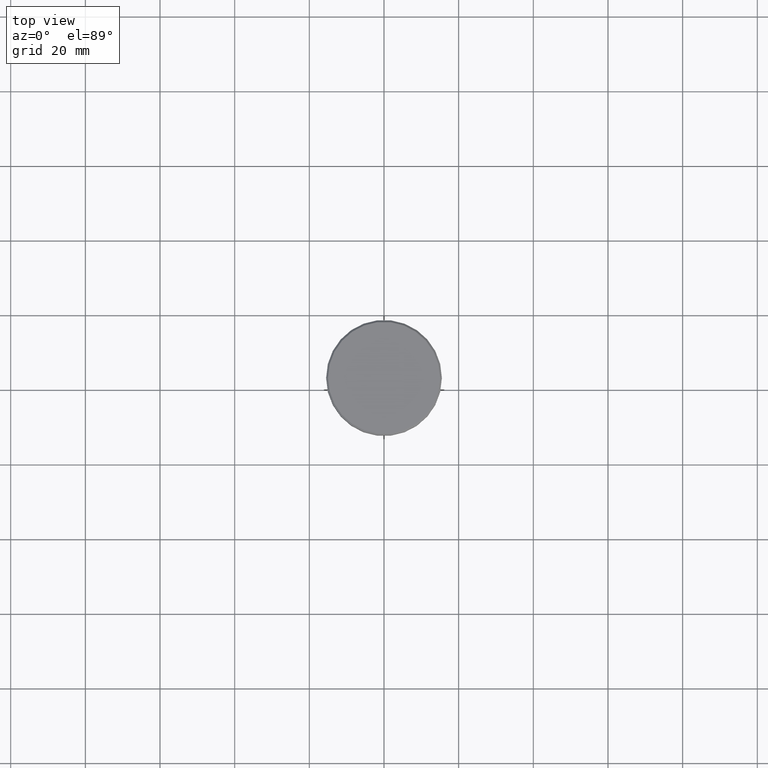
[diagram: clean part render]
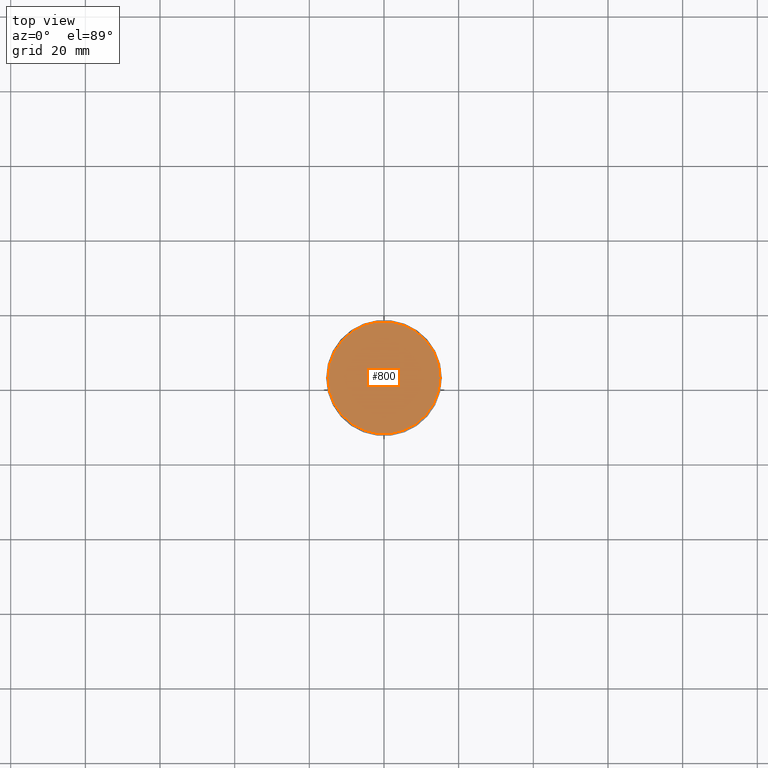
[diagram: same view with one face highlighted and labeled with its STEP entity id]
A machine part, top view. The second image highlights one B-rep face of the part: STEP entity #800.
In plain terms, the highlighted planar face has unit normal (0, -0, 1).
Its self-contained STEP definition (entity closure, byte-faithful):
#63 = CIRCLE ( 'NONE', #805, 14.99999999999998579 ) ;
#102 = CIRCLE ( 'NONE', #404, 14.99999999999998579 ) ;
#135 = EDGE_CURVE ( 'NONE', #753, #1006, #102, .T. ) ;
#139 = CARTESIAN_POINT ( 'NONE',  ( 0.000000000000000000, 0.000000000000000000, 0.000000000000000000 ) ) ;
#234 = AXIS2_PLACEMENT_3D ( 'NONE', #139, #329, #864 ) ;
#241 = DIRECTION ( 'NONE',  ( 1.000000000000000000, 0.000000000000000000, 0.000000000000000000 ) ) ;
#329 = DIRECTION ( 'NONE',  ( 0.000000000000000000, -0.000000000000000000, 1.000000000000000000 ) ) ;
#382 = EDGE_CURVE ( 'NONE', #1006, #753, #63, .T. ) ;
#404 = AXIS2_PLACEMENT_3D ( 'NONE', #743, #565, #855 ) ;
#504 = PLANE ( 'NONE',  #234 ) ;
#565 = DIRECTION ( 'NONE',  ( -0.000000000000000000, -0.000000000000000000, 1.000000000000000000 ) ) ;
#602 = DIRECTION ( 'NONE',  ( -0.000000000000000000, -0.000000000000000000, 1.000000000000000000 ) ) ;
#743 = CARTESIAN_POINT ( 'NONE',  ( 0.000000000000000000, 0.000000000000000000, 0.000000000000000000 ) ) ;
#753 = VERTEX_POINT ( 'NONE', #979 ) ;
#796 = CARTESIAN_POINT ( 'NONE',  ( 0.000000000000000000, 0.000000000000000000, 0.000000000000000000 ) ) ;
#800 = ADVANCED_FACE ( 'NONE', ( #1151 ), #504, .T. ) ;
#805 = AXIS2_PLACEMENT_3D ( 'NONE', #796, #602, #241 ) ;
#855 = DIRECTION ( 'NONE',  ( 1.000000000000000000, 0.000000000000000000, 0.000000000000000000 ) ) ;
#864 = DIRECTION ( 'NONE',  ( 1.000000000000000000, 0.000000000000000000, 0.000000000000000000 ) ) ;
#894 = CARTESIAN_POINT ( 'NONE',  ( 14.99999999999998579, 1.867586368699712587E-15, 0.000000000000000000 ) ) ;
#897 = ORIENTED_EDGE ( 'NONE', *, *, #382, .T. ) ;
#979 = CARTESIAN_POINT ( 'NONE',  ( -14.99999999999998579, 0.000000000000000000, 0.000000000000000000 ) ) ;
#1006 = VERTEX_POINT ( 'NONE', #894 ) ;
#1077 = EDGE_LOOP ( 'NONE', ( #1146, #897 ) ) ;
#1146 = ORIENTED_EDGE ( 'NONE', *, *, #135, .T. ) ;
#1151 = FACE_OUTER_BOUND ( 'NONE', #1077, .T. ) ;